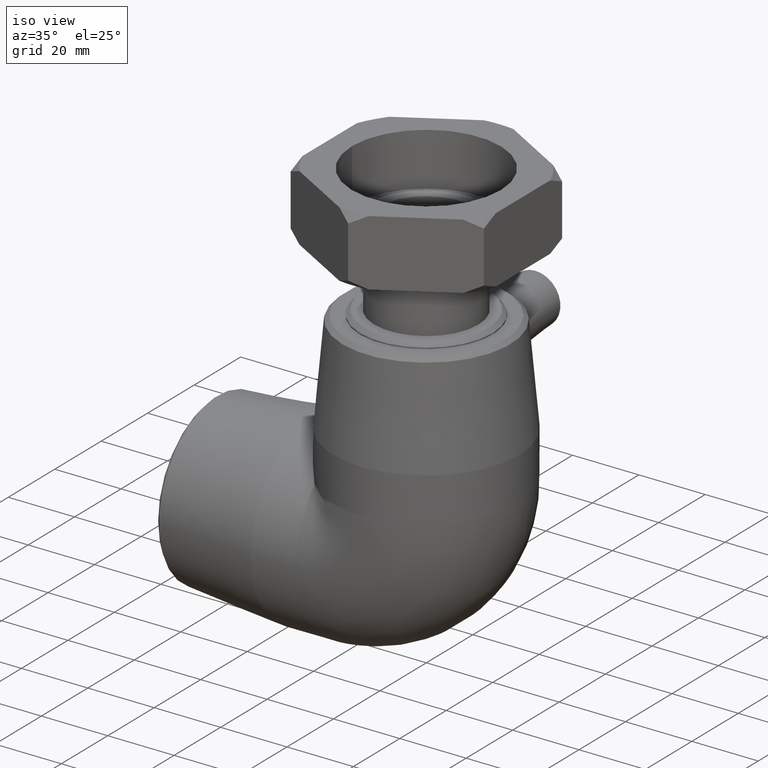
[diagram: clean part render]
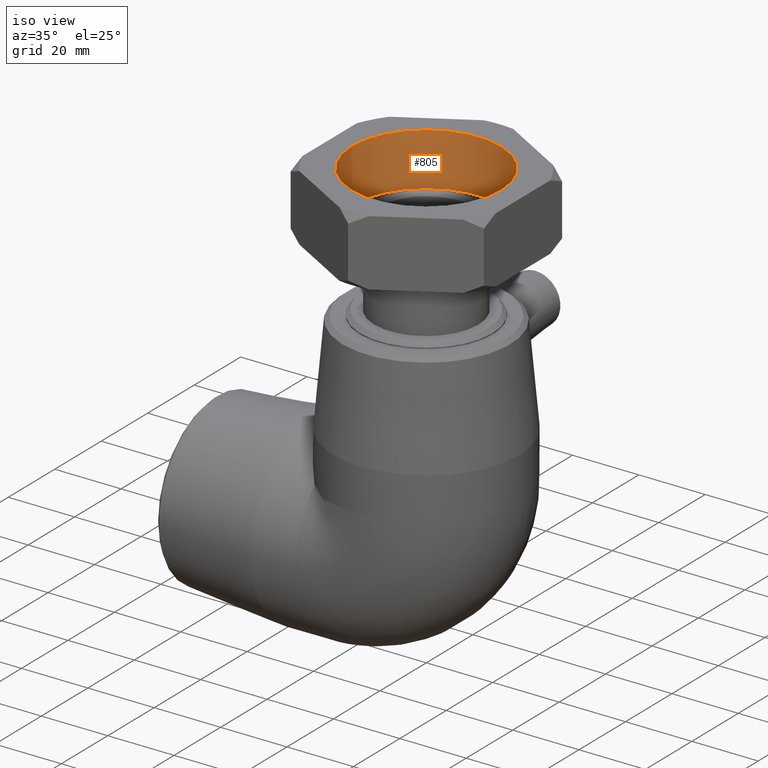
[diagram: same view with one face highlighted and labeled with its STEP entity id]
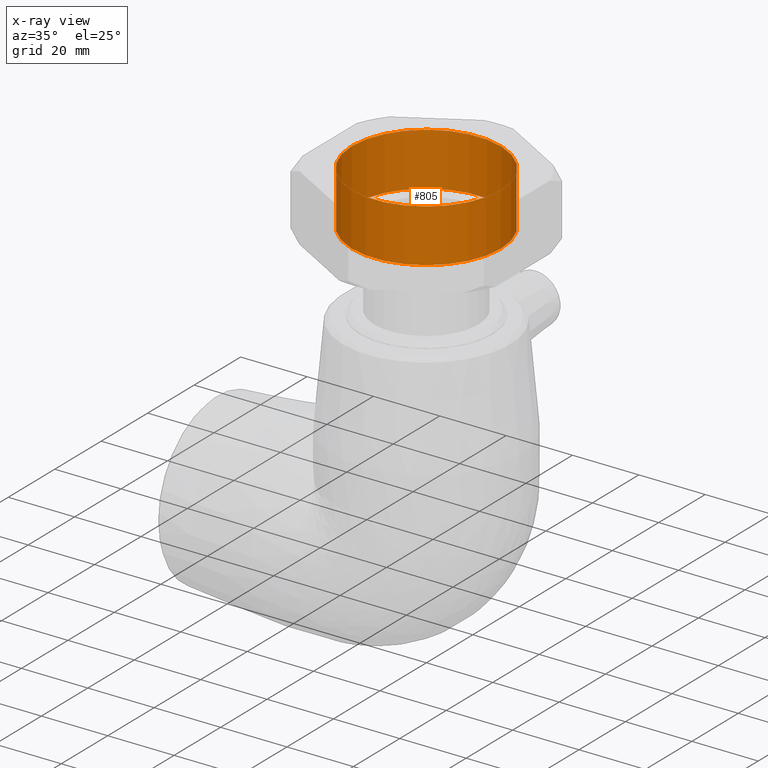
[diagram: x-ray of the same camera — body ghosted, the highlighted face saturated]
A machine part, iso view. The second image highlights one B-rep face of the part: STEP entity #805.
The next image is the same camera in x-ray: the body ghosted, the highlighted face saturated — about 0% of this face is hidden behind the body in this view.
In plain terms, the highlighted cylindrical surface (bore or boss wall) has radius 22.4225 mm, axis along (-0, 0, -1).
Its self-contained STEP definition (entity closure, byte-faithful):
#85=CYLINDRICAL_SURFACE('',#906,22.4225);
#140=FACE_BOUND('',#283,.T.);
#198=FACE_OUTER_BOUND('',#282,.T.);
#282=EDGE_LOOP('',(#700));
#283=EDGE_LOOP('',(#701));
#339=CIRCLE('',#870,22.4225);
#358=CIRCLE('',#905,22.4225);
#415=VERTEX_POINT('',#1360);
#436=VERTEX_POINT('',#1484);
#511=EDGE_CURVE('',#415,#415,#339,.T.);
#532=EDGE_CURVE('',#436,#436,#358,.T.);
#700=ORIENTED_EDGE('',*,*,#511,.F.);
#701=ORIENTED_EDGE('',*,*,#532,.T.);
#805=ADVANCED_FACE('',(#198,#140),#85,.F.);
#870=AXIS2_PLACEMENT_3D('',#1361,#1042,#1043);
#905=AXIS2_PLACEMENT_3D('',#1485,#1112,#1113);
#906=AXIS2_PLACEMENT_3D('',#1486,#1114,#1115);
#1042=DIRECTION('center_axis',(-2.08166817117217E-16,0.,-1.));
#1043=DIRECTION('ref_axis',(1.,0.,-2.08166817117217E-16));
#1112=DIRECTION('center_axis',(-2.08166817117217E-16,0.,-1.));
#1113=DIRECTION('ref_axis',(1.,0.,-2.08166817117217E-16));
#1114=DIRECTION('center_axis',(-2.08166817117217E-16,0.,-1.));
#1115=DIRECTION('ref_axis',(-1.,0.,2.521641858989E-16));
#1360=CARTESIAN_POINT('',(-22.4225,0.,104.));
#1361=CARTESIAN_POINT('Origin',(2.16493489801906E-14,0.,104.));
#1484=CARTESIAN_POINT('',(-22.4225,0.,88.));
#1485=CARTESIAN_POINT('Origin',(1.83186799063151E-14,0.,88.));
#1486=CARTESIAN_POINT('Origin',(1.99840144432528E-14,0.,96.));